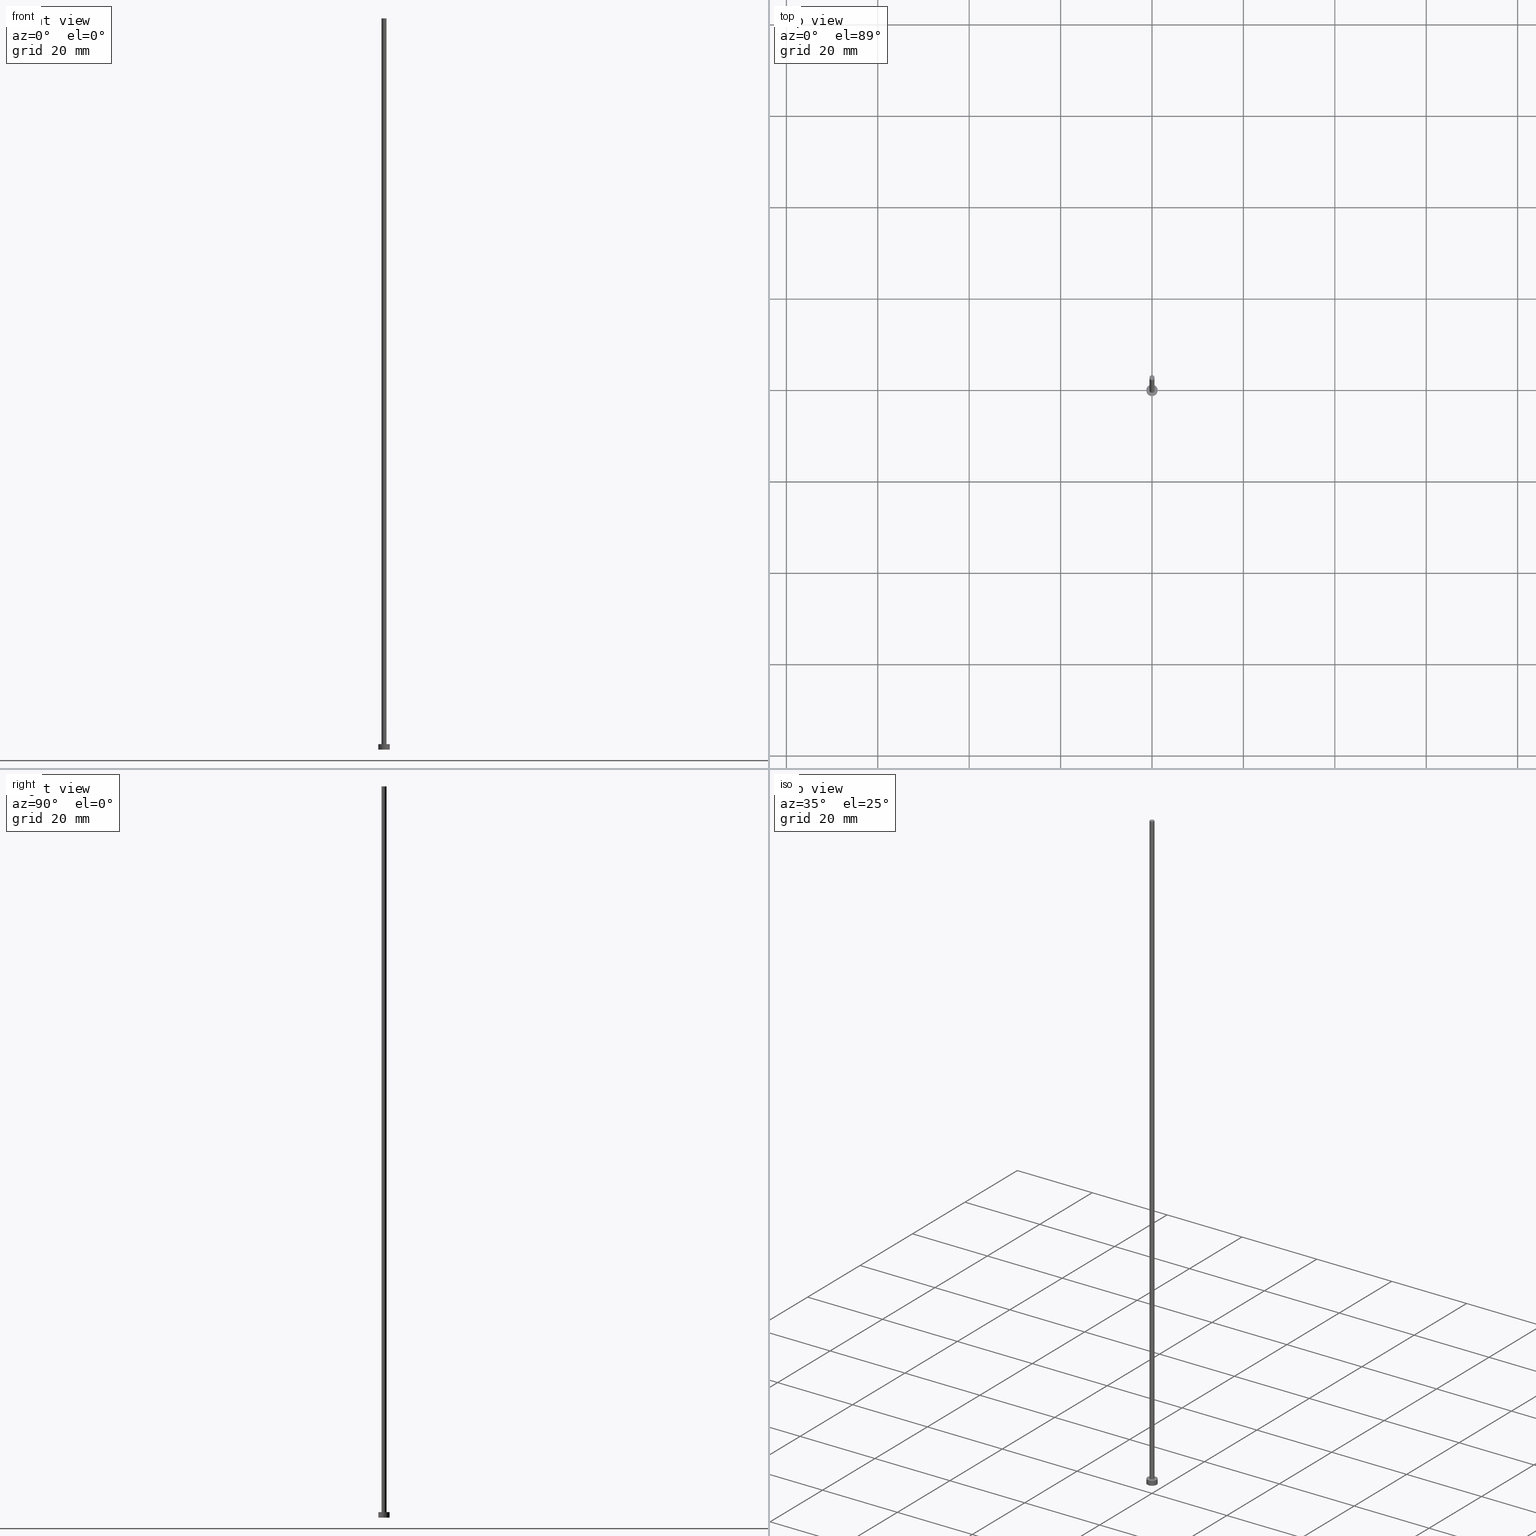
[diagram: canonical four-view strip — front | top / right | iso, engineering-drawing reading convention]
A machine part, canonical four-view strip (front | top / right | iso — engineering-drawing reading convention). The complete STEP part file that produces these views, byte-faithful:
ISO-10303-21;
HEADER;
FILE_DESCRIPTION (( 'STEP AP203' ),
    '1' );
FILE_NAME ('9952.STEP',
    '2023-02-13T15:27:20',
    ( '' ),
    ( '' ),
    'SwSTEP 2.0',
    'SolidWorks 2019',
    '' );
FILE_SCHEMA (( 'CONFIG_CONTROL_DESIGN' ));
ENDSEC;

DATA;
#1 = ADVANCED_FACE ( 'NONE', ( #158, #237 ), #88, .T. ) ;
#2 = DIRECTION ( 'NONE',  ( 1.000000000000000000, 0.000000000000000000, 0.000000000000000000 ) ) ;
#3 = ORIENTED_EDGE ( 'NONE', *, *, #250, .F. ) ;
#4 = VERTEX_POINT ( 'NONE', #205 ) ;
#5 = EDGE_CURVE ( 'NONE', #99, #31, #131, .T. ) ;
#6 = PERSON_AND_ORGANIZATION ( #169, #231 ) ;
#7 = PERSON_AND_ORGANIZATION_ROLE ( 'creator' ) ;
#8 = APPROVAL_DATE_TIME ( #175, #55 ) ;
#9 = DIRECTION ( 'NONE',  ( -0.000000000000000000, -0.000000000000000000, -1.000000000000000000 ) ) ;
#10 = AXIS2_PLACEMENT_3D ( 'NONE', #201, #74, #181 ) ;
#11 = PRODUCT_DEFINITION_SHAPE ( 'NONE', 'NONE',  #77 ) ;
#12 = DIRECTION ( 'NONE',  ( 1.000000000000000000, 0.000000000000000000, 0.000000000000000000 ) ) ;
#13 = DIRECTION ( 'NONE',  ( 0.000000000000000000, 0.000000000000000000, 1.000000000000000000 ) ) ;
#14 = DIRECTION ( 'NONE',  ( -0.000000000000000000, -0.000000000000000000, -1.000000000000000000 ) ) ;
#15 = DIRECTION ( 'NONE',  ( -0.000000000000000000, -0.000000000000000000, -1.000000000000000000 ) ) ;
#16 = CARTESIAN_POINT ( 'NONE',  ( 0.000000000000000000, 0.000000000000000000, 160.0000000000000284 ) ) ;
#17 = APPLICATION_PROTOCOL_DEFINITION ( 'international standard', 'config_control_design', 1994, #197 ) ;
#18 = ORIENTED_EDGE ( 'NONE', *, *, #5, .F. ) ;
#19 = SECURITY_CLASSIFICATION_LEVEL ( 'unclassified' ) ;
#20 = AXIS2_PLACEMENT_3D ( 'NONE', #156, #236, #56 ) ;
#21 = APPROVAL_DATE_TIME ( #98, #63 ) ;
#22 = EDGE_CURVE ( 'NONE', #95, #31, #127, .T. ) ;
#23 = DIRECTION ( 'NONE',  ( 1.000000000000000000, 0.000000000000000000, -0.000000000000000000 ) ) ;
#24 = ORIENTED_EDGE ( 'NONE', *, *, #122, .F. ) ;
#25 = PLANE ( 'NONE',  #84 ) ;
#26 = EDGE_CURVE ( 'NONE', #31, #99, #247, .T. ) ;
#27 = VERTEX_POINT ( 'NONE', #94 ) ;
#28 = DIRECTION ( 'NONE',  ( 0.000000000000000000, 0.000000000000000000, 1.000000000000000000 ) ) ;
#29 = AXIS2_PLACEMENT_3D ( 'NONE', #147, #46, #208 ) ;
#30 = AXIS2_PLACEMENT_3D ( 'NONE', #97, #255, #78 ) ;
#31 = VERTEX_POINT ( 'NONE', #69 ) ;
#32 = CARTESIAN_POINT ( 'NONE',  ( 1.250000000000000000, 1.530808498934191571E-16, 0.000000000000000000 ) ) ;
#33 = DIRECTION ( 'NONE',  ( -1.000000000000000000, 0.000000000000000000, 0.000000000000000000 ) ) ;
#34 = VERTEX_POINT ( 'NONE', #226 ) ;
#35 = LOCAL_TIME ( 16, 27, 20.00000000000000000, #244 ) ;
#36 = CARTESIAN_POINT ( 'NONE',  ( 0.000000000000000000, 0.000000000000000000, 1.199999999999999956 ) ) ;
#37 = PRODUCT_RELATED_PRODUCT_CATEGORY ( 'detail', '', ( #210 ) ) ;
#38 =( LENGTH_UNIT ( ) NAMED_UNIT ( * ) SI_UNIT ( .MILLI., .METRE. ) );
#39 = DIRECTION ( 'NONE',  ( 1.000000000000000000, 0.000000000000000000, 0.000000000000000000 ) ) ;
#40 = APPROVAL_DATE_TIME ( #60, #86 ) ;
#41 = CALENDAR_DATE ( 2023, 13, 2 ) ;
#42 = PERSON_AND_ORGANIZATION ( #169, #231 ) ;
#43 = DATE_AND_TIME ( #41, #35 ) ;
#44 = CYLINDRICAL_SURFACE ( 'NONE', #29, 0.5500000000000000444 ) ;
#45 = AXIS2_PLACEMENT_3D ( 'NONE', #36, #154, #119 ) ;
#46 = DIRECTION ( 'NONE',  ( -0.000000000000000000, -0.000000000000000000, -1.000000000000000000 ) ) ;
#47 = ORIENTED_EDGE ( 'NONE', *, *, #189, .T. ) ;
#48 = AXIS2_PLACEMENT_3D ( 'NONE', #214, #113, #2 ) ;
#49 = ORIENTED_EDGE ( 'NONE', *, *, #68, .F. ) ;
#50 = ORIENTED_EDGE ( 'NONE', *, *, #22, .T. ) ;
#51 = FACE_OUTER_BOUND ( 'NONE', #230, .T. ) ;
#52 = ORIENTED_EDGE ( 'NONE', *, *, #68, .T. ) ;
#53 = VECTOR ( 'NONE', #245, 1000.000000000000000 ) ;
#54 = APPROVAL_PERSON_ORGANIZATION ( #66, #55, #240 ) ;
#55 = APPROVAL ( #165, 'NEUR�EN�' ) ;
#56 = DIRECTION ( 'NONE',  ( 1.000000000000000000, 0.000000000000000000, 0.000000000000000000 ) ) ;
#57 = ORIENTED_EDGE ( 'NONE', *, *, #189, .F. ) ;
#58 = CC_DESIGN_PERSON_AND_ORGANIZATION_ASSIGNMENT ( #164, #238, ( #210 ) ) ;
#59 = COORDINATED_UNIVERSAL_TIME_OFFSET ( 1, 0, .AHEAD. ) ;
#60 = DATE_AND_TIME ( #123, #186 ) ;
#61 = COORDINATED_UNIVERSAL_TIME_OFFSET ( 1, 0, .AHEAD. ) ;
#62 = APPROVAL_STATUS ( 'not_yet_approved' ) ;
#63 = APPROVAL ( #62, 'NEUR�EN�' ) ;
#64 = CIRCLE ( 'NONE', #162, 1.250000000000000000 ) ;
#65 = DIRECTION ( 'NONE',  ( 0.000000000000000000, 0.000000000000000000, 1.000000000000000000 ) ) ;
#66 = PERSON_AND_ORGANIZATION ( #169, #231 ) ;
#67 = DIRECTION ( 'NONE',  ( -0.000000000000000000, -0.000000000000000000, -1.000000000000000000 ) ) ;
#68 = EDGE_CURVE ( 'NONE', #34, #72, #91, .T. ) ;
#69 = CARTESIAN_POINT ( 'NONE',  ( -0.5500000000000000444, 0.000000000000000000, 1.199999999999999956 ) ) ;
#70 = DIRECTION ( 'NONE',  ( 0.000000000000000000, 0.000000000000000000, 1.000000000000000000 ) ) ;
#71 = CC_DESIGN_PERSON_AND_ORGANIZATION_ASSIGNMENT ( #143, #7, ( #159 ) ) ;
#72 = VERTEX_POINT ( 'NONE', #32 ) ;
#73 = LOCAL_TIME ( 16, 27, 20.00000000000000000, #204 ) ;
#74 = DIRECTION ( 'NONE',  ( 0.000000000000000000, 0.000000000000000000, 1.000000000000000000 ) ) ;
#75 = CARTESIAN_POINT ( 'NONE',  ( 0.000000000000000000, 0.000000000000000000, 1.199999999999999956 ) ) ;
#76 = ORIENTED_EDGE ( 'NONE', *, *, #239, .F. ) ;
#77 = PRODUCT_DEFINITION ( 'NEZN�M�', '', #159, #233 ) ;
#78 = DIRECTION ( 'NONE',  ( 1.000000000000000000, 0.000000000000000000, 0.000000000000000000 ) ) ;
#79 = CYLINDRICAL_SURFACE ( 'NONE', #90, 0.5500000000000000444 ) ;
#80 = EDGE_LOOP ( 'NONE', ( #111, #76 ) ) ;
#81 = CYLINDRICAL_SURFACE ( 'NONE', #191, 1.250000000000000000 ) ;
#82 = ORIENTED_EDGE ( 'NONE', *, *, #198, .F. ) ;
#83 = APPLICATION_PROTOCOL_DEFINITION ( 'international standard', 'config_control_design', 1994, #115 ) ;
#84 = AXIS2_PLACEMENT_3D ( 'NONE', #207, #173, #23 ) ;
#85 = APPROVAL_ROLE ( '' ) ;
#86 = APPROVAL ( #121, 'NEUR�EN�' ) ;
#87 = PERSON_AND_ORGANIZATION ( #169, #231 ) ;
#88 = PLANE ( 'NONE',  #163 ) ;
#89 = DATE_AND_TIME ( #190, #73 ) ;
#90 = AXIS2_PLACEMENT_3D ( 'NONE', #16, #14, #33 ) ;
#91 = LINE ( 'NONE', #133, #53 ) ;
#92 = CARTESIAN_POINT ( 'NONE',  ( -0.5500000000000000444, 0.000000000000000000, 160.0000000000000284 ) ) ;
#93 = CARTESIAN_POINT ( 'NONE',  ( 0.000000000000000000, 0.000000000000000000, 1.199999999999999956 ) ) ;
#94 = CARTESIAN_POINT ( 'NONE',  ( 0.5500000000000000444, 6.735557395310442516E-17, 160.0000000000000284 ) ) ;
#95 = VERTEX_POINT ( 'NONE', #92 ) ;
#96 = CARTESIAN_POINT ( 'NONE',  ( 0.000000000000000000, 0.000000000000000000, 1.199999999999999956 ) ) ;
#97 = CARTESIAN_POINT ( 'NONE',  ( 0.000000000000000000, 0.000000000000000000, 0.000000000000000000 ) ) ;
#98 = DATE_AND_TIME ( #203, #148 ) ;
#99 = VERTEX_POINT ( 'NONE', #176 ) ;
#100 = CC_DESIGN_APPROVAL ( #86, ( #159 ) ) ;
#101 = DIRECTION ( 'NONE',  ( 1.000000000000000000, 0.000000000000000000, 0.000000000000000000 ) ) ;
#102 = CC_DESIGN_PERSON_AND_ORGANIZATION_ASSIGNMENT ( #87, #188, ( #159 ) ) ;
#103 = PERSON_AND_ORGANIZATION ( #169, #231 ) ;
#104 = APPROVAL_ROLE ( '' ) ;
#105 = MANIFOLD_SOLID_BREP ( 'P�idat vysunut�m3', #107 ) ;
#106 = ADVANCED_FACE ( 'NONE', ( #213 ), #44, .T. ) ;
#107 = CLOSED_SHELL ( 'NONE', ( #106, #129, #212, #1, #117, #185, #149 ) ) ;
#108 = CARTESIAN_POINT ( 'NONE',  ( 0.000000000000000000, 0.000000000000000000, 1.199999999999999956 ) ) ;
#109 = EDGE_LOOP ( 'NONE', ( #178, #183 ) ) ;
#110 = FACE_OUTER_BOUND ( 'NONE', #249, .T. ) ;
#111 = ORIENTED_EDGE ( 'NONE', *, *, #225, .F. ) ;
#112 = CARTESIAN_POINT ( 'NONE',  ( 0.000000000000000000, 0.000000000000000000, 1.199999999999999956 ) ) ;
#113 = DIRECTION ( 'NONE',  ( 0.000000000000000000, 0.000000000000000000, 1.000000000000000000 ) ) ;
#114 = CIRCLE ( 'NONE', #30, 1.250000000000000000 ) ;
#115 = APPLICATION_CONTEXT ( 'configuration controlled 3d designs of mechanical parts and assemblies' ) ;
#116 = CARTESIAN_POINT ( 'NONE',  ( -1.250000000000000000, 0.000000000000000000, 1.199999999999999956 ) ) ;
#117 = ADVANCED_FACE ( 'NONE', ( #126 ), #25, .F. ) ;
#118 = CC_DESIGN_APPROVAL ( #63, ( #77 ) ) ;
#119 = DIRECTION ( 'NONE',  ( 1.000000000000000000, 0.000000000000000000, 0.000000000000000000 ) ) ;
#120 = EDGE_LOOP ( 'NONE', ( #24, #209, #139, #134 ) ) ;
#121 = APPROVAL_STATUS ( 'not_yet_approved' ) ;
#122 = EDGE_CURVE ( 'NONE', #27, #95, #187, .T. ) ;
#123 = CALENDAR_DATE ( 2023, 13, 2 ) ;
#124 =( NAMED_UNIT ( * ) SI_UNIT ( $, .STERADIAN. ) SOLID_ANGLE_UNIT ( ) );
#125 = CC_DESIGN_DATE_AND_TIME_ASSIGNMENT ( #43, #142, ( #77 ) ) ;
#126 = FACE_OUTER_BOUND ( 'NONE', #80, .T. ) ;
#127 = LINE ( 'NONE', #174, #140 ) ;
#128 = ORIENTED_EDGE ( 'NONE', *, *, #239, .T. ) ;
#129 = ADVANCED_FACE ( 'NONE', ( #110 ), #211, .T. ) ;
#130 = VERTEX_POINT ( 'NONE', #150 ) ;
#131 = CIRCLE ( 'NONE', #218, 0.5500000000000000444 ) ;
#132 =( GEOMETRIC_REPRESENTATION_CONTEXT ( 3 ) GLOBAL_UNCERTAINTY_ASSIGNED_CONTEXT ( ( #206 ) ) GLOBAL_UNIT_ASSIGNED_CONTEXT ( ( #38, #202, #124 ) ) REPRESENTATION_CONTEXT ( 'NONE', 'WORKASPACE' ) );
#133 = CARTESIAN_POINT ( 'NONE',  ( 1.250000000000000000, 1.530808498934191571E-16, 1.199999999999999956 ) ) ;
#134 = ORIENTED_EDGE ( 'NONE', *, *, #22, .F. ) ;
#135 = DIRECTION ( 'NONE',  ( -1.000000000000000000, 0.000000000000000000, 0.000000000000000000 ) ) ;
#136 = ORIENTED_EDGE ( 'NONE', *, *, #26, .F. ) ;
#137 = CC_DESIGN_APPROVAL ( #55, ( #246 ) ) ;
#138 = LINE ( 'NONE', #116, #243 ) ;
#139 = ORIENTED_EDGE ( 'NONE', *, *, #5, .T. ) ;
#140 = VECTOR ( 'NONE', #67, 1000.000000000000000 ) ;
#141 = CC_DESIGN_SECURITY_CLASSIFICATION ( #246, ( #159 ) ) ;
#142 = DATE_TIME_ROLE ( 'creation_date' ) ;
#143 = PERSON_AND_ORGANIZATION ( #169, #231 ) ;
#144 = CALENDAR_DATE ( 2023, 13, 2 ) ;
#145 = CARTESIAN_POINT ( 'NONE',  ( 0.000000000000000000, 0.000000000000000000, 0.000000000000000000 ) ) ;
#146 = DIRECTION ( 'NONE',  ( 1.000000000000000000, 0.000000000000000000, -0.000000000000000000 ) ) ;
#147 = CARTESIAN_POINT ( 'NONE',  ( 0.000000000000000000, 0.000000000000000000, 160.0000000000000284 ) ) ;
#148 = LOCAL_TIME ( 16, 27, 20.00000000000000000, #59 ) ;
#149 = ADVANCED_FACE ( 'NONE', ( #196 ), #151, .T. ) ;
#150 = CARTESIAN_POINT ( 'NONE',  ( -1.250000000000000000, 0.000000000000000000, 0.000000000000000000 ) ) ;
#151 = PLANE ( 'NONE',  #10 ) ;
#152 = APPROVAL_PERSON_ORGANIZATION ( #103, #86, #104 ) ;
#153 = ORIENTED_EDGE ( 'NONE', *, *, #250, .T. ) ;
#154 = DIRECTION ( 'NONE',  ( 0.000000000000000000, 0.000000000000000000, 1.000000000000000000 ) ) ;
#155 = ORIENTED_EDGE ( 'NONE', *, *, #170, .F. ) ;
#156 = CARTESIAN_POINT ( 'NONE',  ( 0.000000000000000000, 0.000000000000000000, 0.000000000000000000 ) ) ;
#157 = AXIS2_PLACEMENT_3D ( 'NONE', #108, #9, #194 ) ;
#158 = FACE_BOUND ( 'NONE', #200, .T. ) ;
#159 = PRODUCT_DEFINITION_FORMATION_WITH_SPECIFIED_SOURCE ( 'LIBOVOLN�', '', #210, .NOT_KNOWN. ) ;
#160 = EDGE_LOOP ( 'NONE', ( #155, #57, #50, #182 ) ) ;
#161 = DIRECTION ( 'NONE',  ( -0.000000000000000000, -0.000000000000000000, -1.000000000000000000 ) ) ;
#162 = AXIS2_PLACEMENT_3D ( 'NONE', #75, #13, #39 ) ;
#163 = AXIS2_PLACEMENT_3D ( 'NONE', #242, #65, #146 ) ;
#164 = PERSON_AND_ORGANIZATION ( #169, #231 ) ;
#165 = APPROVAL_STATUS ( 'not_yet_approved' ) ;
#166 = CIRCLE ( 'NONE', #48, 0.5500000000000000444 ) ;
#167 = DATE_TIME_ROLE ( 'classification_date' ) ;
#168 = CC_DESIGN_DATE_AND_TIME_ASSIGNMENT ( #89, #167, ( #246 ) ) ;
#169 = PERSON ( 'NEUR�EN�', 'NEUR�EN�', 'NEUR�EN�', ('NEUR�EN�'), ('NEUR�EN�'), ('NEUR�EN�') ) ;
#170 = EDGE_CURVE ( 'NONE', #27, #99, #253, .T. ) ;
#171 = AXIS2_PLACEMENT_3D ( 'NONE', #112, #70, #229 ) ;
#172 = APPROVAL_PERSON_ORGANIZATION ( #6, #63, #85 ) ;
#173 = DIRECTION ( 'NONE',  ( 0.000000000000000000, 0.000000000000000000, 1.000000000000000000 ) ) ;
#174 = CARTESIAN_POINT ( 'NONE',  ( -0.5500000000000000444, 0.000000000000000000, 160.0000000000000284 ) ) ;
#175 = DATE_AND_TIME ( #144, #220 ) ;
#176 = CARTESIAN_POINT ( 'NONE',  ( 0.5500000000000000444, 6.735557395310442516E-17, 1.199999999999999956 ) ) ;
#177 = CARTESIAN_POINT ( 'NONE',  ( 0.5500000000000000444, 6.735557395310442516E-17, 160.0000000000000284 ) ) ;
#178 = ORIENTED_EDGE ( 'NONE', *, *, #216, .T. ) ;
#179 = ADVANCED_BREP_SHAPE_REPRESENTATION ( '9952', ( #105, #217 ), #132 ) ;
#180 = EDGE_LOOP ( 'NONE', ( #47, #215 ) ) ;
#181 = DIRECTION ( 'NONE',  ( 1.000000000000000000, 0.000000000000000000, -0.000000000000000000 ) ) ;
#182 = ORIENTED_EDGE ( 'NONE', *, *, #26, .T. ) ;
#183 = ORIENTED_EDGE ( 'NONE', *, *, #198, .T. ) ;
#184 = PERSON_AND_ORGANIZATION_ROLE ( 'creator' ) ;
#185 = ADVANCED_FACE ( 'NONE', ( #199 ), #79, .T. ) ;
#186 = LOCAL_TIME ( 16, 27, 20.00000000000000000, #221 ) ;
#187 = CIRCLE ( 'NONE', #235, 0.5500000000000000444 ) ;
#188 = PERSON_AND_ORGANIZATION_ROLE ( 'design_supplier' ) ;
#189 = EDGE_CURVE ( 'NONE', #95, #27, #166, .T. ) ;
#190 = CALENDAR_DATE ( 2023, 13, 2 ) ;
#191 = AXIS2_PLACEMENT_3D ( 'NONE', #96, #161, #135 ) ;
#192 = CARTESIAN_POINT ( 'NONE',  ( 0.000000000000000000, 0.000000000000000000, 160.0000000000000284 ) ) ;
#193 = CC_DESIGN_PERSON_AND_ORGANIZATION_ASSIGNMENT ( #42, #241, ( #246 ) ) ;
#194 = DIRECTION ( 'NONE',  ( -1.000000000000000000, 0.000000000000000000, 0.000000000000000000 ) ) ;
#195 = VECTOR ( 'NONE', #234, 1000.000000000000000 ) ;
#196 = FACE_OUTER_BOUND ( 'NONE', #180, .T. ) ;
#197 = APPLICATION_CONTEXT ( 'configuration controlled 3d designs of mechanical parts and assemblies' ) ;
#198 = EDGE_CURVE ( 'NONE', #34, #4, #64, .T. ) ;
#199 = FACE_OUTER_BOUND ( 'NONE', #160, .T. ) ;
#200 = EDGE_LOOP ( 'NONE', ( #136, #18 ) ) ;
#201 = CARTESIAN_POINT ( 'NONE',  ( 0.000000000000000000, 0.000000000000000000, 160.0000000000000284 ) ) ;
#202 =( NAMED_UNIT ( * ) PLANE_ANGLE_UNIT ( ) SI_UNIT ( $, .RADIAN. ) );
#203 = CALENDAR_DATE ( 2023, 13, 2 ) ;
#204 = COORDINATED_UNIVERSAL_TIME_OFFSET ( 1, 0, .AHEAD. ) ;
#205 = CARTESIAN_POINT ( 'NONE',  ( -1.250000000000000000, 0.000000000000000000, 1.199999999999999956 ) ) ;
#206 = UNCERTAINTY_MEASURE_WITH_UNIT (LENGTH_MEASURE( 1.000000000000000082E-05 ), #38, 'distance_accuracy_value', 'NONE');
#207 = CARTESIAN_POINT ( 'NONE',  ( 0.000000000000000000, 0.000000000000000000, 0.000000000000000000 ) ) ;
#208 = DIRECTION ( 'NONE',  ( -1.000000000000000000, 0.000000000000000000, 0.000000000000000000 ) ) ;
#209 = ORIENTED_EDGE ( 'NONE', *, *, #170, .T. ) ;
#210 = PRODUCT ( '9952', '9952', '', ( #224 ) ) ;
#211 = CYLINDRICAL_SURFACE ( 'NONE', #157, 1.250000000000000000 ) ;
#212 = ADVANCED_FACE ( 'NONE', ( #51 ), #81, .T. ) ;
#213 = FACE_OUTER_BOUND ( 'NONE', #120, .T. ) ;
#214 = CARTESIAN_POINT ( 'NONE',  ( 0.000000000000000000, 0.000000000000000000, 160.0000000000000284 ) ) ;
#215 = ORIENTED_EDGE ( 'NONE', *, *, #122, .T. ) ;
#216 = EDGE_CURVE ( 'NONE', #4, #34, #227, .T. ) ;
#217 = AXIS2_PLACEMENT_3D ( 'NONE', #145, #223, #101 ) ;
#218 = AXIS2_PLACEMENT_3D ( 'NONE', #93, #251, #12 ) ;
#219 = ORIENTED_EDGE ( 'NONE', *, *, #216, .F. ) ;
#220 = LOCAL_TIME ( 16, 27, 20.00000000000000000, #61 ) ;
#221 = COORDINATED_UNIVERSAL_TIME_OFFSET ( 1, 0, .AHEAD. ) ;
#222 = PERSON_AND_ORGANIZATION ( #169, #231 ) ;
#223 = DIRECTION ( 'NONE',  ( 0.000000000000000000, 0.000000000000000000, 1.000000000000000000 ) ) ;
#224 = MECHANICAL_CONTEXT ( 'NONE', #197, 'mechanical' ) ;
#225 = EDGE_CURVE ( 'NONE', #130, #72, #114, .T. ) ;
#226 = CARTESIAN_POINT ( 'NONE',  ( 1.250000000000000000, 1.530808498934191571E-16, 1.199999999999999956 ) ) ;
#227 = CIRCLE ( 'NONE', #45, 1.250000000000000000 ) ;
#228 = SHAPE_DEFINITION_REPRESENTATION ( #11, #179 ) ;
#229 = DIRECTION ( 'NONE',  ( 1.000000000000000000, 0.000000000000000000, 0.000000000000000000 ) ) ;
#230 = EDGE_LOOP ( 'NONE', ( #49, #219, #153, #254 ) ) ;
#231 = ORGANIZATION ( 'NEUR�EN�', 'NEUR�EN�', '' ) ;
#232 = CC_DESIGN_PERSON_AND_ORGANIZATION_ASSIGNMENT ( #222, #184, ( #77 ) ) ;
#233 = DESIGN_CONTEXT ( 'detailed design', #115, 'design' ) ;
#234 = DIRECTION ( 'NONE',  ( -0.000000000000000000, -0.000000000000000000, -1.000000000000000000 ) ) ;
#235 = AXIS2_PLACEMENT_3D ( 'NONE', #192, #28, #248 ) ;
#236 = DIRECTION ( 'NONE',  ( 0.000000000000000000, 0.000000000000000000, 1.000000000000000000 ) ) ;
#237 = FACE_OUTER_BOUND ( 'NONE', #109, .T. ) ;
#238 = PERSON_AND_ORGANIZATION_ROLE ( 'design_owner' ) ;
#239 = EDGE_CURVE ( 'NONE', #72, #130, #252, .T. ) ;
#240 = APPROVAL_ROLE ( '' ) ;
#241 = PERSON_AND_ORGANIZATION_ROLE ( 'classification_officer' ) ;
#242 = CARTESIAN_POINT ( 'NONE',  ( 0.000000000000000000, 0.000000000000000000, 1.199999999999999956 ) ) ;
#243 = VECTOR ( 'NONE', #15, 1000.000000000000000 ) ;
#244 = COORDINATED_UNIVERSAL_TIME_OFFSET ( 1, 0, .AHEAD. ) ;
#245 = DIRECTION ( 'NONE',  ( -0.000000000000000000, -0.000000000000000000, -1.000000000000000000 ) ) ;
#246 = SECURITY_CLASSIFICATION ( '', '', #19 ) ;
#247 = CIRCLE ( 'NONE', #171, 0.5500000000000000444 ) ;
#248 = DIRECTION ( 'NONE',  ( 1.000000000000000000, 0.000000000000000000, 0.000000000000000000 ) ) ;
#249 = EDGE_LOOP ( 'NONE', ( #82, #52, #128, #3 ) ) ;
#250 = EDGE_CURVE ( 'NONE', #4, #130, #138, .T. ) ;
#251 = DIRECTION ( 'NONE',  ( 0.000000000000000000, 0.000000000000000000, 1.000000000000000000 ) ) ;
#252 = CIRCLE ( 'NONE', #20, 1.250000000000000000 ) ;
#253 = LINE ( 'NONE', #177, #195 ) ;
#254 = ORIENTED_EDGE ( 'NONE', *, *, #225, .T. ) ;
#255 = DIRECTION ( 'NONE',  ( 0.000000000000000000, 0.000000000000000000, 1.000000000000000000 ) ) ;
ENDSEC;
END-ISO-10303-21;
